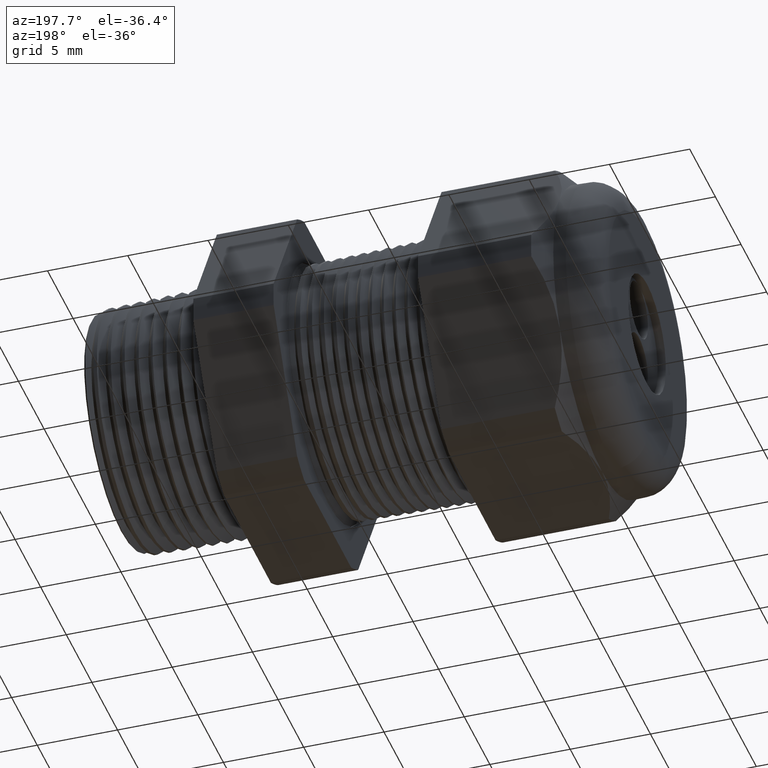
[diagram: clean part render]
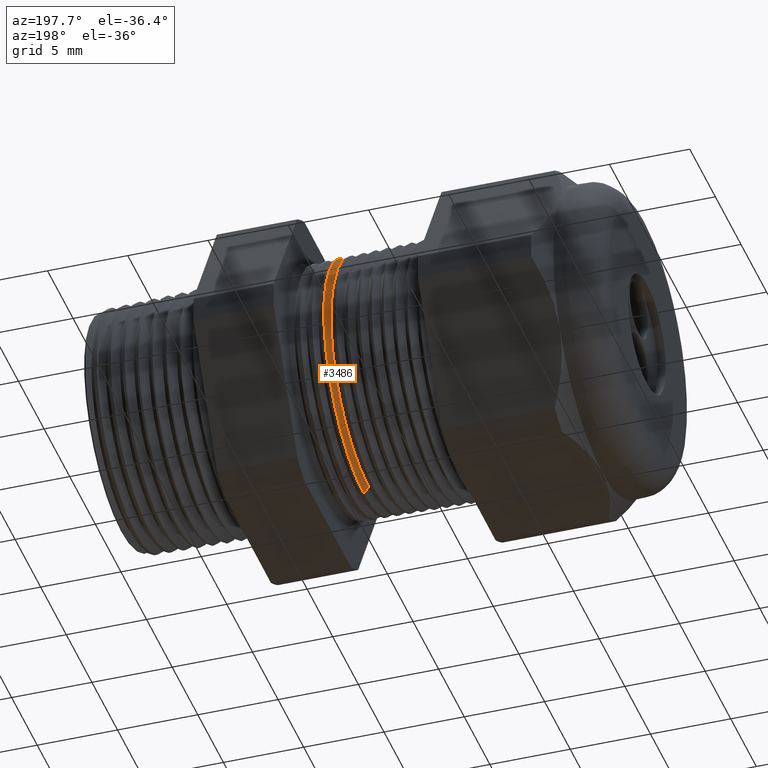
[diagram: same view with one face highlighted and labeled with its STEP entity id]
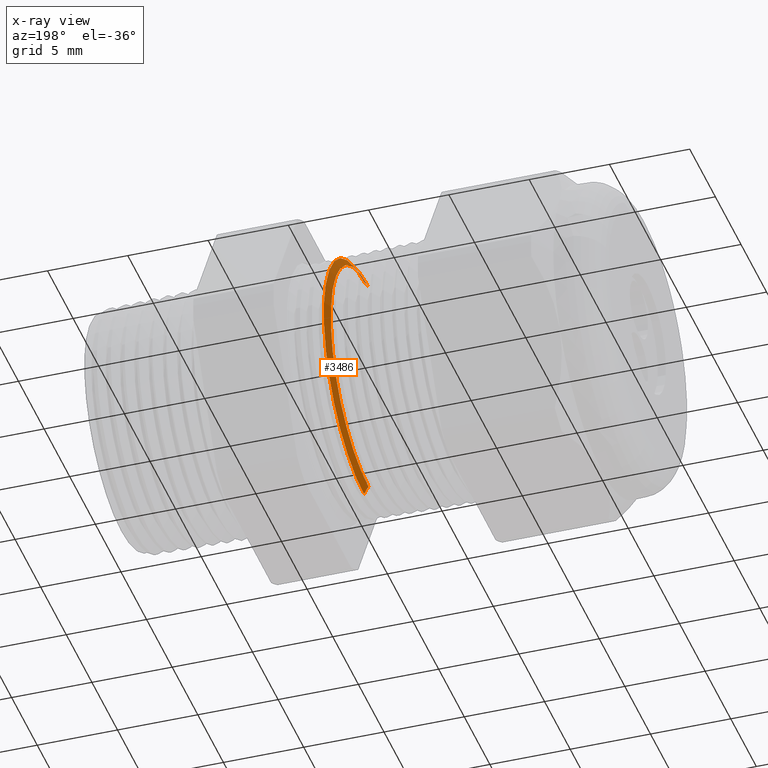
[diagram: x-ray of the same camera — body ghosted, the highlighted face saturated]
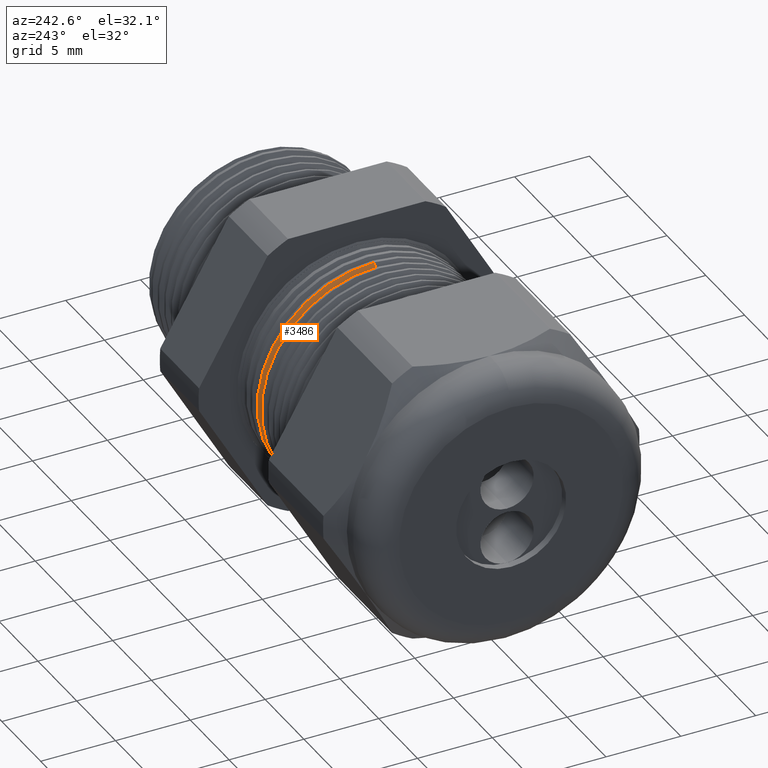
[diagram: same view with one face highlighted and labeled with its STEP entity id]
A machine part, auxiliary view. The second image highlights one B-rep face of the part: STEP entity #3486.
The next image is the same camera in x-ray: the body ghosted, the highlighted face saturated — about 1% of this face is hidden behind the body in this view.
A second angle (auxiliary view) of the same face is appended — the face is thin or edge-on in the first view.
In plain terms, the highlighted conical surface has half-angle 58.5 deg.
Its self-contained STEP definition (entity closure, byte-faithful):
#577 = CARTESIAN_POINT ( 'NONE',  ( -0.6070917547981787800, 3.663258243093464900E-017, -0.2896307351718082600 ) ) ;
#578 = DIRECTION ( 'NONE',  ( 0.0000000000000000000, 0.0000000000000000000, -1.000000000000000000 ) ) ;
#579 = DIRECTION ( 'NONE',  ( 1.000000000000000000, 0.0000000000000000000, 0.0000000000000000000 ) ) ;
#580 = AXIS2_PLACEMENT_3D ( 'NONE', #585, #579, #578 ) ;
#581 = CIRCLE ( 'NONE', #580, 0.2896307351718082600 ) ;
#585 = CARTESIAN_POINT ( 'NONE',  ( -0.6070917547981787800, 0.0000000000000000000, 0.0000000000000000000 ) ) ;
#680 = DIRECTION ( 'NONE',  ( 0.0000000000000000000, 0.0000000000000000000, -1.000000000000000000 ) ) ;
#681 = DIRECTION ( 'NONE',  ( 1.000000000000000000, 0.0000000000000000000, 0.0000000000000000000 ) ) ;
#682 = AXIS2_PLACEMENT_3D ( 'NONE', #685, #681, #680 ) ;
#683 = CONICAL_SURFACE ( 'NONE', #682, 0.2896307351718082600, 1.021017612416699900 ) ;
#685 = CARTESIAN_POINT ( 'NONE',  ( -0.6070917547981787800, 0.0000000000000000000, 0.0000000000000000000 ) ) ;
#686 = FACE_OUTER_BOUND ( 'NONE', #3480, .T. ) ;
#687 = CARTESIAN_POINT ( 'NONE',  ( -0.5957989176891495000, 0.0000000000000000000, 0.3080589704606462300 ) ) ;
#688 = CARTESIAN_POINT ( 'NONE',  ( -0.6070917547981787800, 0.0000000000000000000, 0.2896307351718082600 ) ) ;
#710 = DIRECTION ( 'NONE',  ( 0.5224985647159342500, 0.0000000000000000000, -0.8526401643541010600 ) ) ;
#711 = VECTOR ( 'NONE', #710, 39.37007874015748900 ) ;
#712 = CARTESIAN_POINT ( 'NONE',  ( -0.6070917547981787800, 0.0000000000000000000, -0.2896307351718082600 ) ) ;
#713 = LINE ( 'NONE', #712, #711 ) ;
#714 = CARTESIAN_POINT ( 'NONE',  ( -0.5957989176891495000, 3.772634321232593800E-017, -0.3080589704606462300 ) ) ;
#715 = DIRECTION ( 'NONE',  ( 0.0000000000000000000, 0.0000000000000000000, -1.000000000000000000 ) ) ;
#716 = DIRECTION ( 'NONE',  ( -1.000000000000000000, 0.0000000000000000000, 0.0000000000000000000 ) ) ;
#717 = CARTESIAN_POINT ( 'NONE',  ( -0.5957989176891495000, 0.0000000000000000000, 0.0000000000000000000 ) ) ;
#718 = AXIS2_PLACEMENT_3D ( 'NONE', #717, #716, #715 ) ;
#719 = CIRCLE ( 'NONE', #718, 0.3080589704606462300 ) ;
#720 = DIRECTION ( 'NONE',  ( 0.5224985647159342500, 1.044183048100723100E-016, 0.8526401643541010600 ) ) ;
#721 = VECTOR ( 'NONE', #720, 39.37007874015748900 ) ;
#722 = CARTESIAN_POINT ( 'NONE',  ( -0.6070917547981787800, 3.546953527628497100E-017, 0.2896307351718082600 ) ) ;
#723 = LINE ( 'NONE', #722, #721 ) ;
#3439 = EDGE_CURVE ( 'NONE', #3440, #3482, #581, .T. ) ;
#3440 = VERTEX_POINT ( 'NONE', #577 ) ;
#3480 = EDGE_LOOP ( 'NONE', ( #3481, #3483, #3497, #3500 ) ) ;
#3481 = ORIENTED_EDGE ( 'NONE', *, *, #3439, .T. ) ;
#3482 = VERTEX_POINT ( 'NONE', #688 ) ;
#3483 = ORIENTED_EDGE ( 'NONE', *, *, #3496, .T. ) ;
#3484 = VERTEX_POINT ( 'NONE', #687 ) ;
#3486 = ADVANCED_FACE ( 'NONE', ( #686 ), #683, .T. ) ;
#3496 = EDGE_CURVE ( 'NONE', #3482, #3484, #723, .T. ) ;
#3497 = ORIENTED_EDGE ( 'NONE', *, *, #3498, .T. ) ;
#3498 = EDGE_CURVE ( 'NONE', #3484, #3499, #719, .T. ) ;
#3499 = VERTEX_POINT ( 'NONE', #714 ) ;
#3500 = ORIENTED_EDGE ( 'NONE', *, *, #3501, .F. ) ;
#3501 = EDGE_CURVE ( 'NONE', #3440, #3499, #713, .T. ) ;